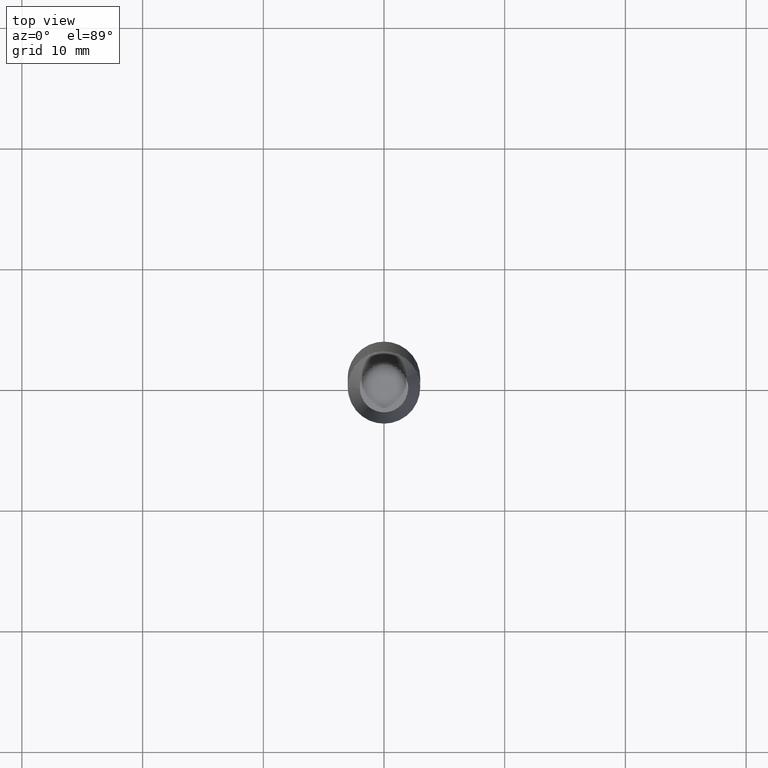
[diagram: clean part render]
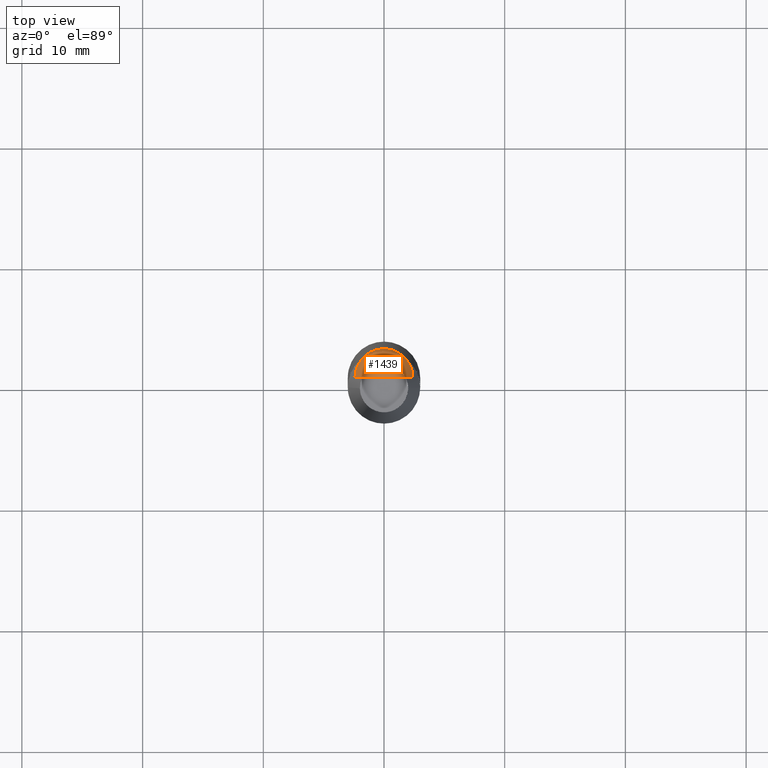
[diagram: same view with one face highlighted and labeled with its STEP entity id]
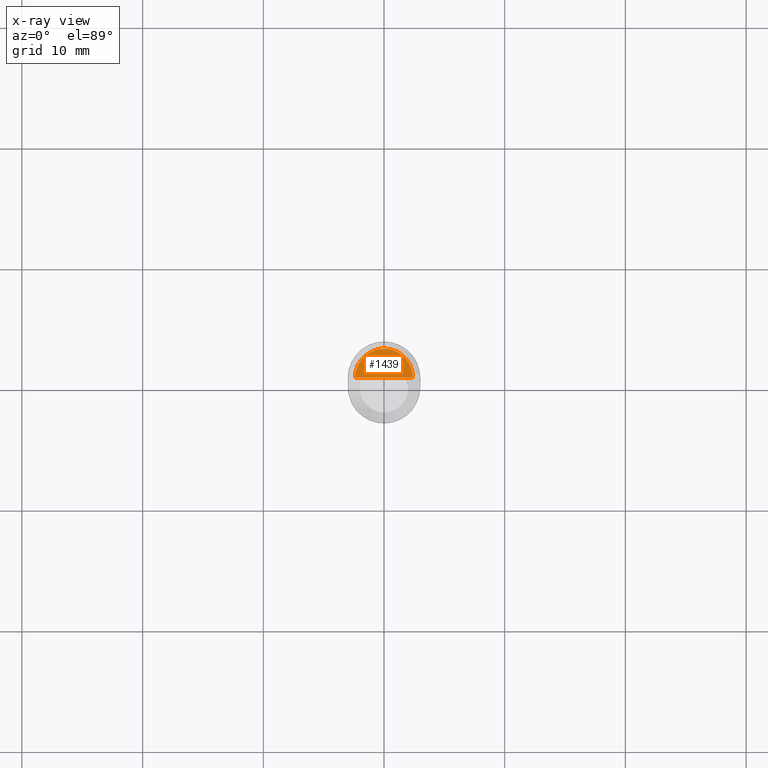
[diagram: x-ray of the same camera — body ghosted, the highlighted face saturated]
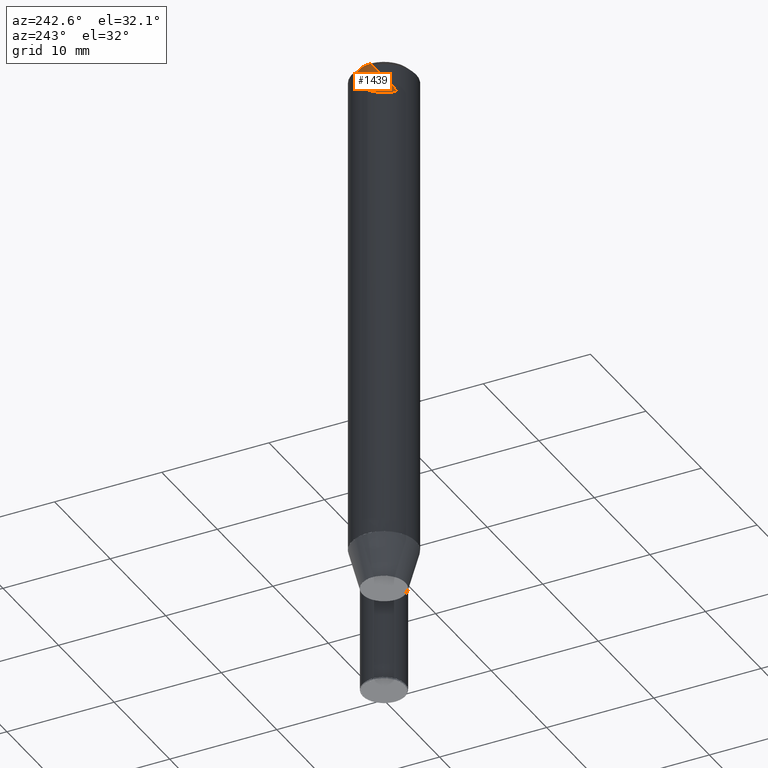
[diagram: same view with one face highlighted and labeled with its STEP entity id]
A machine part, top view. The second image highlights one B-rep face of the part: STEP entity #1439.
The next image is the same camera in x-ray: the body ghosted, the highlighted face saturated — about 0% of this face is hidden behind the body in this view.
A second angle (auxiliary view) of the same face is appended — the face is thin or edge-on in the first view.
In plain terms, the highlighted face is a freeform B-spline surface patch.
Its self-contained STEP definition (entity closure, byte-faithful):
#1176=CARTESIAN_POINT('',(2.4,0.0,46.267949192431));
#1177=CARTESIAN_POINT('',(2.4,2.4,46.267949192431));
#1178=CARTESIAN_POINT('',(0.0,2.4,46.267949192431));
#1179=CARTESIAN_POINT('',(-2.4,2.4,46.267949192431));
#1180=CARTESIAN_POINT('',(-2.4,0.0,46.267949192431));
#1181=CARTESIAN_POINT('',(0.0,0.0,46.267949192431));
#1424=(
BOUNDED_SURFACE()
B_SPLINE_SURFACE(1,2,(
(#1176,#1177,#1178,#1179,#1180),
(#1181,#1181,#1181,#1181,#1181)
), .UNSPECIFIED.,.F.,.F.,.F.)
B_SPLINE_SURFACE_WITH_KNOTS((2,2),(3,2,3),(
0.0,1.0),(
0.0,0.5,1.0), .UNSPECIFIED.)
GEOMETRIC_REPRESENTATION_ITEM()
RATIONAL_B_SPLINE_SURFACE(((1.0,0.707106781187,1.0,0.707106781187,1.0),
(1.0,0.707106781187,1.0,0.707106781187,1.0)
))
REPRESENTATION_ITEM('')
SURFACE()
);
#1425=(
BOUNDED_CURVE()
B_SPLINE_CURVE(1,(#1181,#1176),.UNSPECIFIED.,.F.,.F.)
B_SPLINE_CURVE_WITH_KNOTS((2,2),
(0.0,1.0),.UNSPECIFIED.)
CURVE()
GEOMETRIC_REPRESENTATION_ITEM()
RATIONAL_B_SPLINE_CURVE((1.0,1.0))
REPRESENTATION_ITEM('')
);
#1426=(
BOUNDED_CURVE()
B_SPLINE_CURVE(2,(#1176,#1177,#1178,#1179,#1180),.UNSPECIFIED.,.F.,.F.)
B_SPLINE_CURVE_WITH_KNOTS((3,2,3),
(0.0,0.5,1.0),.UNSPECIFIED.)
CURVE()
GEOMETRIC_REPRESENTATION_ITEM()
RATIONAL_B_SPLINE_CURVE((1.0,0.707106781187,1.0,0.707106781187,1.0))
REPRESENTATION_ITEM('')
);
#1427=(
BOUNDED_CURVE()
B_SPLINE_CURVE(1,(#1180,#1181),.UNSPECIFIED.,.F.,.F.)
B_SPLINE_CURVE_WITH_KNOTS((2,2),
(0.0,1.0),.UNSPECIFIED.)
CURVE()
GEOMETRIC_REPRESENTATION_ITEM()
RATIONAL_B_SPLINE_CURVE((1.0,1.0))
REPRESENTATION_ITEM('')
);
#1428=VERTEX_POINT('',#1176);
#1429=VERTEX_POINT('',#1180);
#1430=VERTEX_POINT('',#1181);
#1431=EDGE_CURVE('',#1430,#1428,#1425,.T.);
#1432=EDGE_CURVE('',#1428,#1429,#1426,.T.);
#1433=EDGE_CURVE('',#1429,#1430,#1427,.T.);
#1434=ORIENTED_EDGE('',*,*,#1431,.T.);
#1435=ORIENTED_EDGE('',*,*,#1432,.T.);
#1436=ORIENTED_EDGE('',*,*,#1433,.T.);
#1437=EDGE_LOOP('',(#1434,#1435,#1436));
#1438=FACE_OUTER_BOUND('',#1437,.T.);
#1439=ADVANCED_FACE('',(#1438),#1424,.T.);